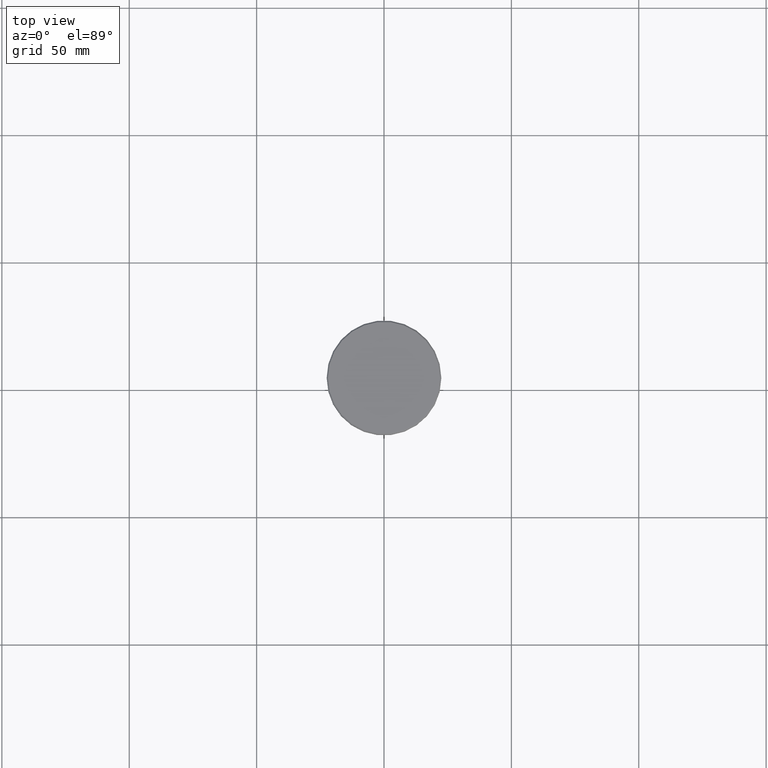
[diagram: clean part render]
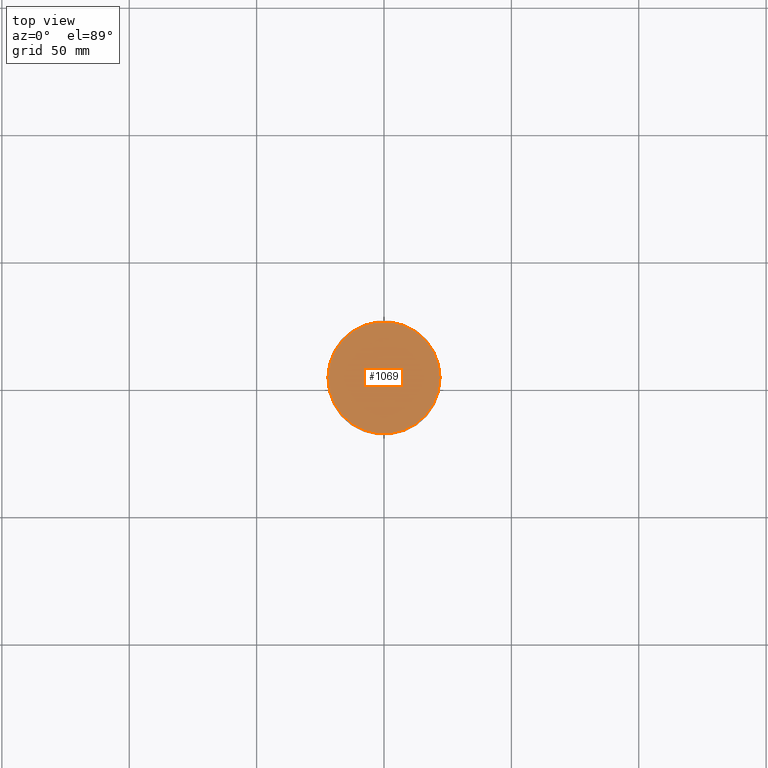
[diagram: same view with one face highlighted and labeled with its STEP entity id]
A machine part, top view. The second image highlights one B-rep face of the part: STEP entity #1069.
In plain terms, the highlighted planar face has unit normal (0, -0, 1).
Its self-contained STEP definition (entity closure, byte-faithful):
#308 = AXIS2_PLACEMENT_3D ( 'NONE', #434, #1157, #341 ) ;
#315 = EDGE_CURVE ( 'NONE', #383, #507, #342, .T. ) ;
#321 = DIRECTION ( 'NONE',  ( -0.000000000000000000, -0.000000000000000000, 1.000000000000000000 ) ) ;
#341 = DIRECTION ( 'NONE',  ( 1.000000000000000000, 0.000000000000000000, 0.000000000000000000 ) ) ;
#342 = CIRCLE ( 'NONE', #829, 22.00000000000004619 ) ;
#383 = VERTEX_POINT ( 'NONE', #834 ) ;
#434 = CARTESIAN_POINT ( 'NONE',  ( 0.000000000000000000, 0.000000000000000000, 0.000000000000000000 ) ) ;
#439 = DIRECTION ( 'NONE',  ( 1.000000000000000000, 0.000000000000000000, 0.000000000000000000 ) ) ;
#486 = CIRCLE ( 'NONE', #937, 22.00000000000004619 ) ;
#488 = ORIENTED_EDGE ( 'NONE', *, *, #1052, .T. ) ;
#498 = CARTESIAN_POINT ( 'NONE',  ( -22.00000000000004619, 0.000000000000000000, 0.000000000000000000 ) ) ;
#507 = VERTEX_POINT ( 'NONE', #498 ) ;
#634 = EDGE_LOOP ( 'NONE', ( #488, #1038 ) ) ;
#682 = DIRECTION ( 'NONE',  ( 1.000000000000000000, 0.000000000000000000, 0.000000000000000000 ) ) ;
#697 = FACE_OUTER_BOUND ( 'NONE', #634, .T. ) ;
#784 = PLANE ( 'NONE',  #308 ) ;
#829 = AXIS2_PLACEMENT_3D ( 'NONE', #1001, #1182, #439 ) ;
#834 = CARTESIAN_POINT ( 'NONE',  ( 22.00000000000004619, 2.724839128102864146E-15, 0.000000000000000000 ) ) ;
#937 = AXIS2_PLACEMENT_3D ( 'NONE', #1130, #321, #682 ) ;
#1001 = CARTESIAN_POINT ( 'NONE',  ( 0.000000000000000000, 0.000000000000000000, 0.000000000000000000 ) ) ;
#1038 = ORIENTED_EDGE ( 'NONE', *, *, #315, .T. ) ;
#1052 = EDGE_CURVE ( 'NONE', #507, #383, #486, .T. ) ;
#1069 = ADVANCED_FACE ( 'NONE', ( #697 ), #784, .T. ) ;
#1130 = CARTESIAN_POINT ( 'NONE',  ( 0.000000000000000000, 0.000000000000000000, 0.000000000000000000 ) ) ;
#1157 = DIRECTION ( 'NONE',  ( 0.000000000000000000, -0.000000000000000000, 1.000000000000000000 ) ) ;
#1182 = DIRECTION ( 'NONE',  ( -0.000000000000000000, -0.000000000000000000, 1.000000000000000000 ) ) ;